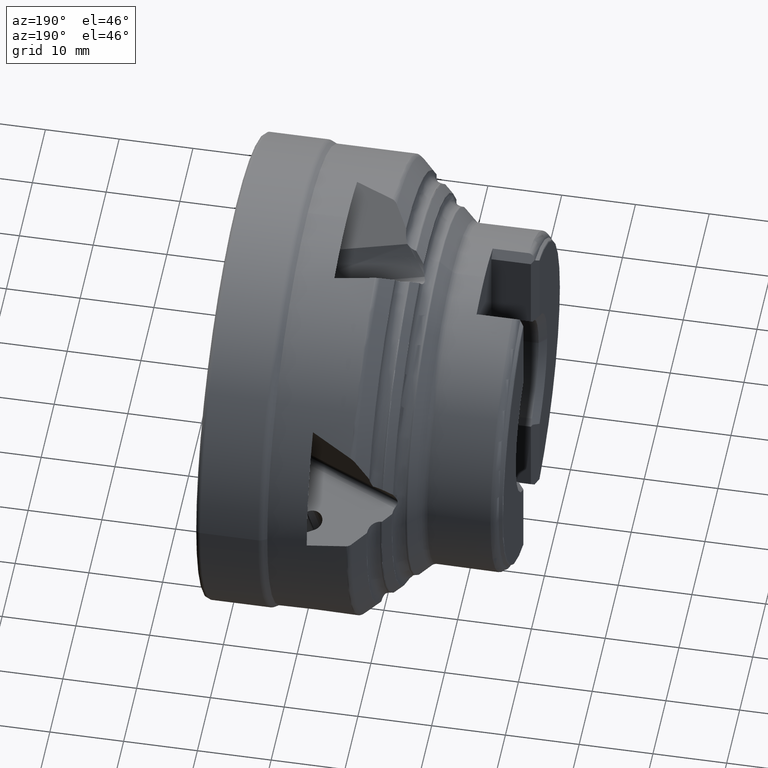
[diagram: clean part render]
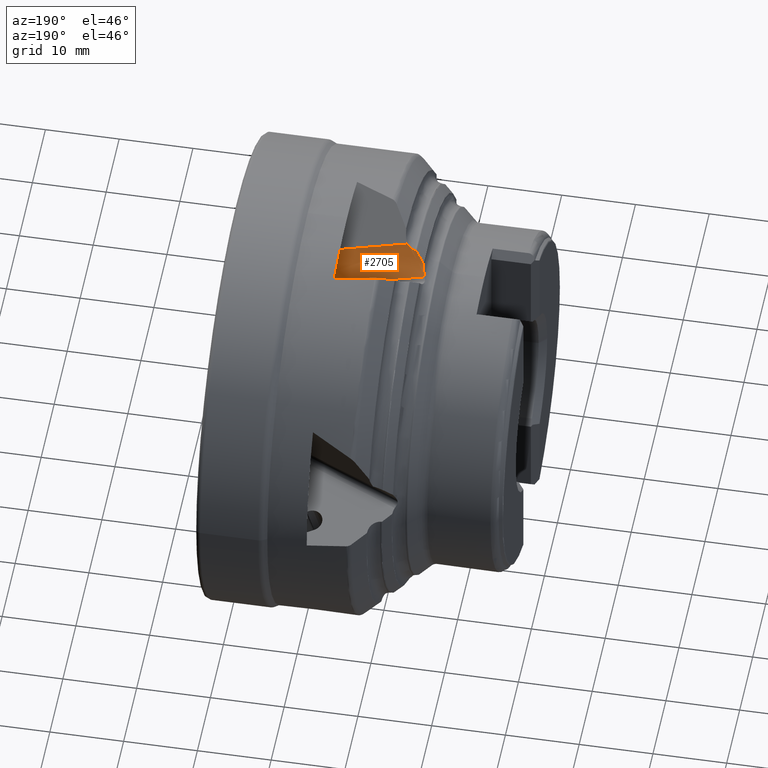
[diagram: same view with one face highlighted and labeled with its STEP entity id]
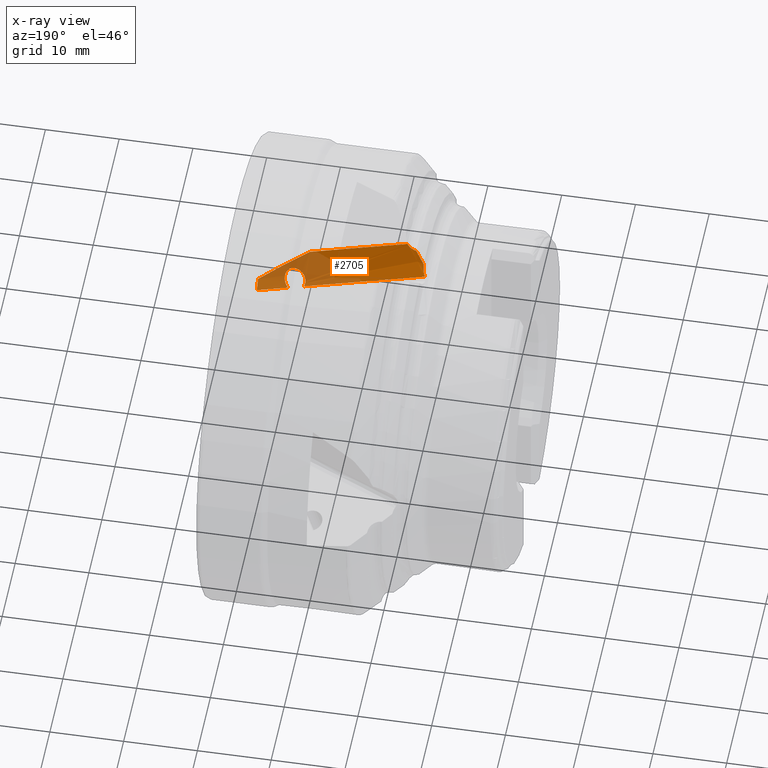
[diagram: x-ray of the same camera — body ghosted, the highlighted face saturated]
A machine part, auxiliary view. The second image highlights one B-rep face of the part: STEP entity #2705.
The next image is the same camera in x-ray: the body ghosted, the highlighted face saturated — about 38% of this face is hidden behind the body in this view.
In plain terms, the highlighted face is a freeform B-spline surface patch.
Its self-contained STEP definition (entity closure, byte-faithful):
#81 = CARTESIAN_POINT ( 'NONE',  ( -24.36246391146191200, 3.404540822889372500, 25.18942615892297400 ) ) ;
#120 = CARTESIAN_POINT ( 'NONE',  ( -24.03428399164215500, 2.348443809163356400, 26.24650993133587200 ) ) ;
#217 = EDGE_CURVE ( 'NONE', #10754, #10758, #10549, .T. ) ;
#245 = EDGE_CURVE ( 'NONE', #475, #481, #10508, .T. ) ;
#434 = EDGE_LOOP ( 'NONE', ( #2395, #2396, #2397, #2398, #2399, #2400, #2401, #2402, #2403, #2404, #2405, #2406, #2407, #2408 ) ) ;
#475 = VERTEX_POINT ( 'NONE', #4763 ) ;
#481 = VERTEX_POINT ( 'NONE', #4769 ) ;
#759 = VERTEX_POINT ( 'NONE', #4851 ) ;
#760 = VERTEX_POINT ( 'NONE', #4852 ) ;
#1074 = EDGE_CURVE ( 'NONE', #759, #760, #10494, .T. ) ;
#1531 = VERTEX_POINT ( 'NONE', #7198 ) ;
#1676 = EDGE_CURVE ( 'NONE', #2040, #1531, #6273, .T. ) ;
#1684 = EDGE_CURVE ( 'NONE', #2045, #481, #7272, .T. ) ;
#2040 = VERTEX_POINT ( 'NONE', #8210 ) ;
#2045 = VERTEX_POINT ( 'NONE', #8215 ) ;
#2395 = ORIENTED_EDGE ( 'NONE', *, *, #2725, .F. ) ;
#2396 = ORIENTED_EDGE ( 'NONE', *, *, #1676, .F. ) ;
#2397 = ORIENTED_EDGE ( 'NONE', *, *, #2726, .F. ) ;
#2398 = ORIENTED_EDGE ( 'NONE', *, *, #2727, .T. ) ;
#2399 = ORIENTED_EDGE ( 'NONE', *, *, #1074, .T. ) ;
#2400 = ORIENTED_EDGE ( 'NONE', *, *, #2728, .T. ) ;
#2401 = ORIENTED_EDGE ( 'NONE', *, *, #2729, .F. ) ;
#2402 = ORIENTED_EDGE ( 'NONE', *, *, #217, .T. ) ;
#2403 = ORIENTED_EDGE ( 'NONE', *, *, #2730, .T. ) ;
#2404 = ORIENTED_EDGE ( 'NONE', *, *, #2731, .T. ) ;
#2405 = ORIENTED_EDGE ( 'NONE', *, *, #2732, .T. ) ;
#2406 = ORIENTED_EDGE ( 'NONE', *, *, #2733, .T. ) ;
#2407 = ORIENTED_EDGE ( 'NONE', *, *, #245, .T. ) ;
#2408 = ORIENTED_EDGE ( 'NONE', *, *, #1684, .F. ) ;
#2705 = ADVANCED_FACE ( 'NONE', ( #8721 ), #7143, .F. ) ;
#2725 = EDGE_CURVE ( 'NONE', #1531, #2045, #8837, .T. ) ;
#2726 = EDGE_CURVE ( 'NONE', #2875, #2040, #9269, .T. ) ;
#2727 = EDGE_CURVE ( 'NONE', #2875, #759, #8838, .T. ) ;
#2728 = EDGE_CURVE ( 'NONE', #760, #2907, #8839, .T. ) ;
#2729 = EDGE_CURVE ( 'NONE', #10754, #2907, #9284, .T. ) ;
#2730 = EDGE_CURVE ( 'NONE', #10758, #2913, #8840, .T. ) ;
#2731 = EDGE_CURVE ( 'NONE', #2913, #2914, #8841, .T. ) ;
#2732 = EDGE_CURVE ( 'NONE', #2914, #2915, #8842, .T. ) ;
#2733 = EDGE_CURVE ( 'NONE', #2915, #475, #8843, .T. ) ;
#2875 = VERTEX_POINT ( 'NONE', #9804 ) ;
#2907 = VERTEX_POINT ( 'NONE', #9836 ) ;
#2913 = VERTEX_POINT ( 'NONE', #9842 ) ;
#2914 = VERTEX_POINT ( 'NONE', #9843 ) ;
#2915 = VERTEX_POINT ( 'NONE', #9844 ) ;
#4434 = CARTESIAN_POINT ( 'NONE',  ( -24.26913403865445300, 3.210361896446969300, 25.33352619547151000 ) ) ;
#4441 = CARTESIAN_POINT ( 'NONE',  ( -24.18998163035901800, 3.024459614615156300, 25.49123893818470100 ) ) ;
#4446 = CARTESIAN_POINT ( 'NONE',  ( -24.36246391146191200, 3.404540822889372500, 25.18942615892297400 ) ) ;
#4447 = CARTESIAN_POINT ( 'NONE',  ( -24.10241852268846700, 2.759388216539702100, 25.75314856153858400 ) ) ;
#4448 = CARTESIAN_POINT ( 'NONE',  ( -24.07849323805233200, 2.673338542908958400, 25.84471015867815100 ) ) ;
#4449 = CARTESIAN_POINT ( 'NONE',  ( -24.04453471512596600, 2.506323066864405200, 26.03802825091544500 ) ) ;
#4450 = CARTESIAN_POINT ( 'NONE',  ( -24.03451419232860400, 2.424889772335191700, 26.14048145194163900 ) ) ;
#4451 = CARTESIAN_POINT ( 'NONE',  ( -24.03428399164215500, 2.348443809163356400, 26.24650993133587200 ) ) ;
#4593 = CARTESIAN_POINT ( 'NONE',  ( -21.78011351886360100, 0.6804553859603357200, 27.71792286123063300 ) ) ;
#4601 = CARTESIAN_POINT ( 'NONE',  ( -22.16748034680138300, 0.8845928467984662800, 27.54004813856627400 ) ) ;
#4602 = CARTESIAN_POINT ( 'NONE',  ( -22.58210432144555600, 1.029113532133300000, 27.53464664586278900 ) ) ;
#4603 = CARTESIAN_POINT ( 'NONE',  ( -21.50426107264350500, 0.5014913274328320900, 28.00618790321243200 ) ) ;
#4763 = CARTESIAN_POINT ( 'NONE',  ( -22.58210432144555600, 1.029113532133300000, 27.53464664586278900 ) ) ;
#4769 = CARTESIAN_POINT ( 'NONE',  ( -21.50426107264350500, 0.5014913274328320900, 28.00618790321243200 ) ) ;
#4851 = CARTESIAN_POINT ( 'NONE',  ( -4.988891989184550900, 0.2144227712270927500, 17.02257042355412900 ) ) ;
#4852 = CARTESIAN_POINT ( 'NONE',  ( -7.422195293568346000, -0.03148585040540835500, 18.84378675315023700 ) ) ;
#5391 = CARTESIAN_POINT ( 'NONE',  ( -4.935945353900578400, 0.1409441901050984300, 17.07361886422572900 ) ) ;
#5392 = CARTESIAN_POINT ( 'NONE',  ( -4.988891989184550900, 0.2144227712270927500, 17.02257042355412900 ) ) ;
#5400 = CARTESIAN_POINT ( 'NONE',  ( -4.890707012783867200, 0.06818461040124274000, 17.13064933115828500 ) ) ;
#5401 = CARTESIAN_POINT ( 'NONE',  ( -4.815106285260687200, -0.07564370526353773900, 17.25661440165424300 ) ) ;
#5402 = CARTESIAN_POINT ( 'NONE',  ( -4.784532280069311300, -0.1474619228723665600, 17.32638133561178500 ) ) ;
#5403 = CARTESIAN_POINT ( 'NONE',  ( -4.740775048695938100, -0.2851310540899843500, 17.47452882537867000 ) ) ;
#5404 = CARTESIAN_POINT ( 'NONE',  ( -4.727468878943732900, -0.3507358002327455900, 17.55245188934186000 ) ) ;
#5405 = CARTESIAN_POINT ( 'NONE',  ( -4.718394766566048800, -0.4755637174268659300, 17.71598738440920700 ) ) ;
#5406 = CARTESIAN_POINT ( 'NONE',  ( -4.722900697320723900, -0.5352834276900982900, 17.80253869982196900 ) ) ;
#5407 = CARTESIAN_POINT ( 'NONE',  ( -4.750564801548154700, -0.6430662175906105600, 17.97590993618821600 ) ) ;
#5408 = CARTESIAN_POINT ( 'NONE',  ( -4.773498440256744000, -0.6917401850729262300, 18.06337240410200800 ) ) ;
#5409 = CARTESIAN_POINT ( 'NONE',  ( -4.839151132852104600, -0.7786515901223386400, 18.23946832198992900 ) ) ;
#5410 = CARTESIAN_POINT ( 'NONE',  ( -4.881926743083743000, -0.8163962274956005900, 18.32742801951969700 ) ) ;
#5411 = CARTESIAN_POINT ( 'NONE',  ( -5.035562513570273100, -0.9082593853147643600, 18.57837011708643300 ) ) ;
#5412 = CARTESIAN_POINT ( 'NONE',  ( -5.176359014807236900, -0.9429260187281869300, 18.73431312695156900 ) ) ;
#5413 = CARTESIAN_POINT ( 'NONE',  ( -5.506177106565097300, -0.9551835321901319700, 18.98339963350691300 ) ) ;
#5414 = CARTESIAN_POINT ( 'NONE',  ( -5.695248488423964700, -0.9333867589870412700, 19.07729656268942300 ) ) ;
#5415 = CARTESIAN_POINT ( 'NONE',  ( -6.083974780881471900, -0.8445636563721837800, 19.19384899640005700 ) ) ;
#5416 = CARTESIAN_POINT ( 'NONE',  ( -6.282435744467151500, -0.7781612900071688300, 19.21705492214694600 ) ) ;
#5417 = CARTESIAN_POINT ( 'NONE',  ( -6.660425012376016700, -0.6131965091361883900, 19.20309537155510800 ) ) ;
#5418 = CARTESIAN_POINT ( 'NONE',  ( -6.842467476359926700, -0.5133154311548685500, 19.16571499023032400 ) ) ;
#5419 = CARTESIAN_POINT ( 'NONE',  ( -7.164985638688672300, -0.2903573296786800500, 19.04128488176293400 ) ) ;
#5420 = CARTESIAN_POINT ( 'NONE',  ( -7.309555026499432500, -0.1641256652290713800, 18.95238874381174200 ) ) ;
#5421 = CARTESIAN_POINT ( 'NONE',  ( -7.422195293568346000, -0.03148585040540835500, 18.84378675315023700 ) ) ;
#6273 = B_SPLINE_CURVE_WITH_KNOTS ( 'NONE', 3,
 ( #7229, #7231, #7241, #7242 ),
 .UNSPECIFIED., .F., .F.,
 ( 4, 4 ),
 ( 4.135009070930732000E-018, 0.001522392808945201600 ),
 .UNSPECIFIED. ) ;
#6964 = VECTOR ( 'NONE', #7274, 1000.000000000000000 ) ;
#7143 =( BOUNDED_SURFACE ( )  B_SPLINE_SURFACE ( 3, 1, ( 
 ( #8722, #8732 ),
 ( #8733, #8734 ),
 ( #8735, #8736 ),
 ( #8737, #8738 ) ),
 .UNSPECIFIED., .F., .F., .F. ) 
 B_SPLINE_SURFACE_WITH_KNOTS ( ( 4, 4 ),
 ( 2, 2 ),
 ( 0.0000000000000000000, 1.000000000000000000 ),
 ( 0.0000000000000000000, 1.000000000000000000 ),
 .UNSPECIFIED. ) 
 GEOMETRIC_REPRESENTATION_ITEM ( )  RATIONAL_B_SPLINE_SURFACE ( (
 ( 1.000000000000000000, 1.000000000000000000),
 ( 0.9818360434632664700, 0.9818360434632664700),
 ( 0.9818360434632664700, 0.9818360434632664700),
 ( 1.000000000000000000, 1.000000000000000000) ) ) 
 REPRESENTATION_ITEM ( '' )  SURFACE ( )  );
#7198 = CARTESIAN_POINT ( 'NONE',  ( -0.9999999999999876800, -1.002625187048063800, 16.05198652211921500 ) ) ;
#7229 = CARTESIAN_POINT ( 'NONE',  ( -0.9999999999999940000, -0.02170421283681500700, 14.88758443016244500 ) ) ;
#7231 = CARTESIAN_POINT ( 'NONE',  ( -0.9999999999999940000, -0.3771076940958066300, 15.25236657980591700 ) ) ;
#7241 = CARTESIAN_POINT ( 'NONE',  ( -0.9999999999999928900, -0.7038156455593453900, 15.64071885835320900 ) ) ;
#7242 = CARTESIAN_POINT ( 'NONE',  ( -0.9999999999999876800, -1.002625187048063800, 16.05198652211921500 ) ) ;
#7272 = LINE ( 'NONE', #7273, #6964 ) ;
#7273 = CARTESIAN_POINT ( 'NONE',  ( -27.64208519887189700, 1.401639938570247200, 30.71270434544226200 ) ) ;
#7274 = DIRECTION ( 'NONE',  ( -0.9068635686480308600, 0.1329969652146514300, 0.3998878281501588300 ) ) ;
#8210 = CARTESIAN_POINT ( 'NONE',  ( -0.9999999999999940000, -0.02170421283681500700, 14.88758443016244500 ) ) ;
#8215 = CARTESIAN_POINT ( 'NONE',  ( -7.934288023326418600, -1.488626366118757100, 22.02241345427577500 ) ) ;
#8721 = FACE_OUTER_BOUND ( 'NONE', #434, .T. ) ;
#8722 = CARTESIAN_POINT ( 'NONE',  ( -23.89541489194925500, 0.8521683336810692600, 29.06058389025230000 ) ) ;
#8732 = CARTESIAN_POINT ( 'NONE',  ( -0.2526014135497897700, -2.615191642473832600, 18.63512006074664400 ) ) ;
#8733 = CARTESIAN_POINT ( 'NONE',  ( -24.07875791279638400, 1.401054902590518100, 27.59662266673038300 ) ) ;
#8734 = CARTESIAN_POINT ( 'NONE',  ( -0.4359444343969214300, -2.066305073564383300, 17.17115883722473100 ) ) ;
#8735 = CARTESIAN_POINT ( 'NONE',  ( -24.28491039179194600, 2.274564614845901100, 26.30334948182401800 ) ) ;
#8736 = CARTESIAN_POINT ( 'NONE',  ( -0.6420969133924854200, -1.192795361309000300, 15.87788565231836700 ) ) ;
#8737 = CARTESIAN_POINT ( 'NONE',  ( -24.50263869493069200, 3.425098293103757000, 25.25123720929550700 ) ) ;
#8738 = CARTESIAN_POINT ( 'NONE',  ( -0.8598252165312285600, -0.04226168305114476300, 14.82577337978985300 ) ) ;
#8837 = B_SPLINE_CURVE_WITH_KNOTS ( 'NONE', 3,
 ( #9260, #9259, #9265, #9266, #9267, #9268 ),
 .UNSPECIFIED., .F., .F.,
 ( 4, 2, 4 ),
 ( 0.0004260585586124285500, 0.005007700865292918400, 0.009589343171973407900 ),
 .UNSPECIFIED. ) ;
#8838 = B_SPLINE_CURVE_WITH_KNOTS ( 'NONE', 3,
 ( #9264, #9263, #9274, #9275 ),
 .UNSPECIFIED., .F., .F.,
 ( 4, 4 ),
 ( 0.0000000000000000000, 0.0005868977140783695300 ),
 .UNSPECIFIED. ) ;
#8839 = B_SPLINE_CURVE_WITH_KNOTS ( 'NONE', 3,
 ( #9273, #9272, #9278, #9279, #9280, #9281, #9282, #9283 ),
 .UNSPECIFIED., .F., .F.,
 ( 4, 2, 2, 4 ),
 ( 0.005519841993781848600, 0.006273534589998611500, 0.006650380888106993300, 0.007027227186215374300 ),
 .UNSPECIFIED. ) ;
#8840 = B_SPLINE_CURVE_WITH_KNOTS ( 'NONE', 3,
 ( #9277, #9276, #9290, #9291 ),
 .UNSPECIFIED., .F., .F.,
 ( 4, 4 ),
 ( 2.546031756192706100E-016, 0.0002268814462102657700 ),
 .UNSPECIFIED. ) ;
#8841 = B_SPLINE_CURVE_WITH_KNOTS ( 'NONE', 3,
 ( #9287, #9289, #9294, #9295 ),
 .UNSPECIFIED., .F., .F.,
 ( 4, 4 ),
 ( 1.301042606982605300E-018, 0.001869208965817945200 ),
 .UNSPECIFIED. ) ;
#8842 = B_SPLINE_CURVE_WITH_KNOTS ( 'NONE', 3,
 ( #9288, #9293, #9297, #9298 ),
 .UNSPECIFIED., .F., .F.,
 ( 4, 4 ),
 ( 5.455595014553437400E-018, 0.0001837542891573912800 ),
 .UNSPECIFIED. ) ;
#8843 = B_SPLINE_CURVE_WITH_KNOTS ( 'NONE', 3,
 ( #9292, #9296, #9301, #9302 ),
 .UNSPECIFIED., .F., .F.,
 ( 4, 4 ),
 ( 7.410741937918042400E-018, 0.0001364347269612856600 ),
 .UNSPECIFIED. ) ;
#8977 = VECTOR ( 'NONE', #9286, 1000.000000000000000 ) ;
#8978 = VECTOR ( 'NONE', #9271, 1000.000000000000000 ) ;
#9259 = CARTESIAN_POINT ( 'NONE',  ( -2.154555492541539300, -1.181257316825036700, 17.04000448506658900 ) ) ;
#9260 = CARTESIAN_POINT ( 'NONE',  ( -0.9999999999999876800, -1.002625187048063800, 16.05198652211921500 ) ) ;
#9263 = CARTESIAN_POINT ( 'NONE',  ( -5.213122107400729500, 0.4899596568111110300, 16.85440865108257900 ) ) ;
#9264 = CARTESIAN_POINT ( 'NONE',  ( -5.358354266256606400, 0.6174745024429321200, 16.80943120193277100 ) ) ;
#9265 = CARTESIAN_POINT ( 'NONE',  ( -3.310201719639314500, -1.302365923158728600, 18.03170437891831700 ) ) ;
#9266 = CARTESIAN_POINT ( 'NONE',  ( -5.621762155302837600, -1.458100770141460300, 20.02223345265235800 ) ) ;
#9267 = CARTESIAN_POINT ( 'NONE',  ( -6.777787123639748200, -1.492165969526006600, 21.02098222564945500 ) ) ;
#9268 = CARTESIAN_POINT ( 'NONE',  ( -7.934288023326418600, -1.488626366118757100, 22.02241345427577500 ) ) ;
#9269 = LINE ( 'NONE', #9270, #8978 ) ;
#9270 = CARTESIAN_POINT ( 'NONE',  ( -28.24930900185332700, 3.974569897992904700, 26.90335766448550500 ) ) ;
#9271 = DIRECTION ( 'NONE',  ( 0.9068635686480308600, -0.1329969652146514300, -0.3998878281501588300 ) ) ;
#9272 = CARTESIAN_POINT ( 'NONE',  ( -7.559875559976424200, 0.1306398752914843300, 18.71104247443172900 ) ) ;
#9273 = CARTESIAN_POINT ( 'NONE',  ( -7.422195293568346000, -0.03148585040540835500, 18.84378675315023700 ) ) ;
#9274 = CARTESIAN_POINT ( 'NONE',  ( -5.089681318897153700, 0.3542967575493160500, 16.92539450122086800 ) ) ;
#9275 = CARTESIAN_POINT ( 'NONE',  ( -4.988891989184550900, 0.2144227712270927500, 17.02257042355412900 ) ) ;
#9276 = CARTESIAN_POINT ( 'NONE',  ( -24.03414942661777700, 2.303756918552194200, 26.30848943769259700 ) ) ;
#9277 = CARTESIAN_POINT ( 'NONE',  ( -24.03428399164215500, 2.348443809163356400, 26.24650993133587200 ) ) ;
#9278 = CARTESIAN_POINT ( 'NONE',  ( -7.653524615734431400, 0.3081243053244279200, 18.54410362841767700 ) ) ;
#9279 = CARTESIAN_POINT ( 'NONE',  ( -7.694619721005847300, 0.5630364104391520900, 18.26944596285169500 ) ) ;
#9280 = CARTESIAN_POINT ( 'NONE',  ( -7.691964559202804500, 0.6479002340151242000, 18.17175886060980600 ) ) ;
#9281 = CARTESIAN_POINT ( 'NONE',  ( -7.653065788899480600, 0.8036227092324740300, 17.97790368462613800 ) ) ;
#9282 = CARTESIAN_POINT ( 'NONE',  ( -7.616876447670828800, 0.8764331466737840200, 17.87951652303841100 ) ) ;
#9283 = CARTESIAN_POINT ( 'NONE',  ( -7.564661091777450600, 0.9410425917026003000, 17.78231761527244700 ) ) ;
#9284 = LINE ( 'NONE', #9285, #8977 ) ;
#9285 = CARTESIAN_POINT ( 'NONE',  ( -28.24930900185332700, 3.974569897992904700, 26.90335766448550500 ) ) ;
#9286 = DIRECTION ( 'NONE',  ( 0.9068635686480308600, -0.1329969652146514300, -0.3998878281501588300 ) ) ;
#9287 = CARTESIAN_POINT ( 'NONE',  ( -23.96923507402113200, 2.206112639127336500, 26.40651463482104000 ) ) ;
#9288 = CARTESIAN_POINT ( 'NONE',  ( -22.86511904234957300, 1.150565453056755900, 27.48386791229250600 ) ) ;
#9289 = CARTESIAN_POINT ( 'NONE',  ( -23.62732346967218100, 1.813993767915332200, 26.75295376382381500 ) ) ;
#9290 = CARTESIAN_POINT ( 'NONE',  ( -24.01102601119745800, 2.254040275697837700, 26.36417031046520200 ) ) ;
#9291 = CARTESIAN_POINT ( 'NONE',  ( -23.96923507402113200, 2.206112639127336500, 26.40651463482104000 ) ) ;
#9292 = CARTESIAN_POINT ( 'NONE',  ( -22.71274918744552100, 1.072261396842793200, 27.53870463963335900 ) ) ;
#9293 = CARTESIAN_POINT ( 'NONE',  ( -22.82609359412876100, 1.119575977519379700, 27.52087529237596200 ) ) ;
#9294 = CARTESIAN_POINT ( 'NONE',  ( -23.25805656407837000, 1.462590766601738100, 27.11124981618789000 ) ) ;
#9295 = CARTESIAN_POINT ( 'NONE',  ( -22.86511904234957300, 1.150565453056755900, 27.48386791229250600 ) ) ;
#9296 = CARTESIAN_POINT ( 'NONE',  ( -22.66874424224112900, 1.058549369449295800, 27.53538832270336600 ) ) ;
#9297 = CARTESIAN_POINT ( 'NONE',  ( -22.77206908808990000, 1.090745594444614300, 27.54317512789050000 ) ) ;
#9298 = CARTESIAN_POINT ( 'NONE',  ( -22.71274918744552100, 1.072261396842793200, 27.53870463963335900 ) ) ;
#9301 = CARTESIAN_POINT ( 'NONE',  ( -22.62521162350526200, 1.044138946044682200, 27.53408506768157000 ) ) ;
#9302 = CARTESIAN_POINT ( 'NONE',  ( -22.58210432144555600, 1.029113532133300000, 27.53464664586278900 ) ) ;
#9804 = CARTESIAN_POINT ( 'NONE',  ( -5.358354266256606400, 0.6174745024429321200, 16.80943120193277100 ) ) ;
#9836 = CARTESIAN_POINT ( 'NONE',  ( -7.564661091777450600, 0.9410425917026003000, 17.78231761527244700 ) ) ;
#9842 = CARTESIAN_POINT ( 'NONE',  ( -23.96923507402113200, 2.206112639127336500, 26.40651463482104000 ) ) ;
#9843 = CARTESIAN_POINT ( 'NONE',  ( -22.86511904234957300, 1.150565453056755900, 27.48386791229250600 ) ) ;
#9844 = CARTESIAN_POINT ( 'NONE',  ( -22.71274918744552100, 1.072261396842793200, 27.53870463963335900 ) ) ;
#10494 = B_SPLINE_CURVE_WITH_KNOTS ( 'NONE', 3,
 ( #5392, #5391, #5400, #5401, #5402, #5403, #5404, #5405, #5406, #5407, #5408, #5409, #5410, #5411, #5412, #5413, #5414, #5415, #5416, #5417, #5418, #5419, #5420, #5421 ),
 .UNSPECIFIED., .F., .F.,
 ( 4, 2, 2, 2, 2, 2, 2, 2, 2, 2, 2, 4 ),
 ( 0.0005868977140783695300, 0.0008952067315598343600, 0.001203515749041299100, 0.001511824766522764000, 0.001820133784004229000, 0.002128442801485693700, 0.002436751818967158400, 0.003053369853930096600, 0.003669987888893034300, 0.004286605923855972400, 0.004903223958818909600, 0.005519841993781848600 ),
 .UNSPECIFIED. ) ;
#10508 = B_SPLINE_CURVE_WITH_KNOTS ( 'NONE', 3,
 ( #4602, #4601, #4593, #4603 ),
 .UNSPECIFIED., .F., .F.,
 ( 4, 4 ),
 ( 0.0001364347269612856600, 0.001448720721892459400 ),
 .UNSPECIFIED. ) ;
#10549 = B_SPLINE_CURVE_WITH_KNOTS ( 'NONE', 3,
 ( #4446, #4434, #4441, #4447, #4448, #4449, #4450, #4451 ),
 .UNSPECIFIED., .F., .F.,
 ( 4, 2, 2, 4 ),
 ( 3.878959614448864200E-018, 0.0007654783298573716600, 0.001148217494786052000, 0.001530956659714732300 ),
 .UNSPECIFIED. ) ;
#10754 = VERTEX_POINT ( 'NONE', #81 ) ;
#10758 = VERTEX_POINT ( 'NONE', #120 ) ;